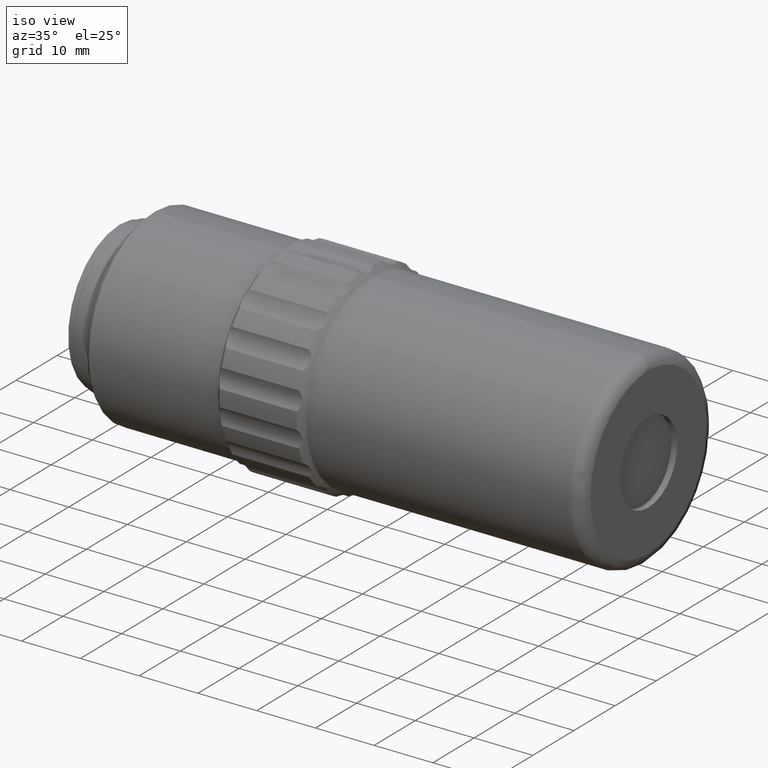
[diagram: clean part render]
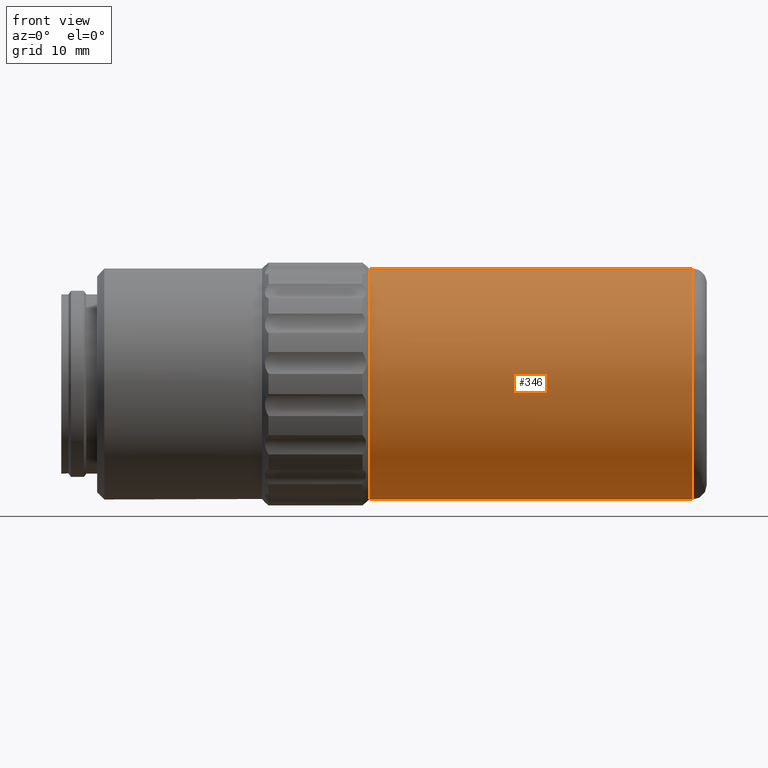
[diagram: tour spotlight — one face highlighted and labeled with its STEP entity id]
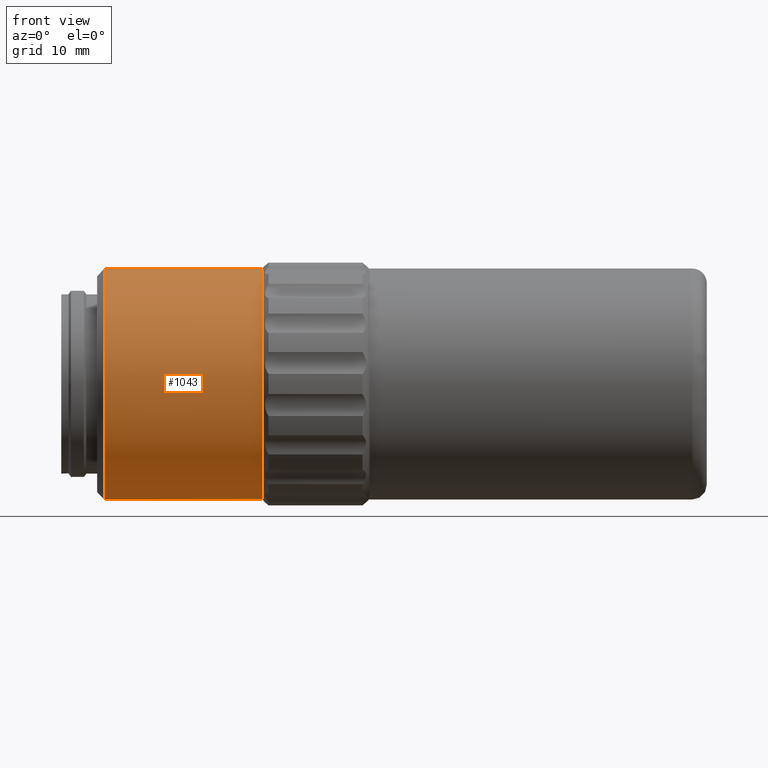
[diagram: tour spotlight — one face highlighted and labeled with its STEP entity id]
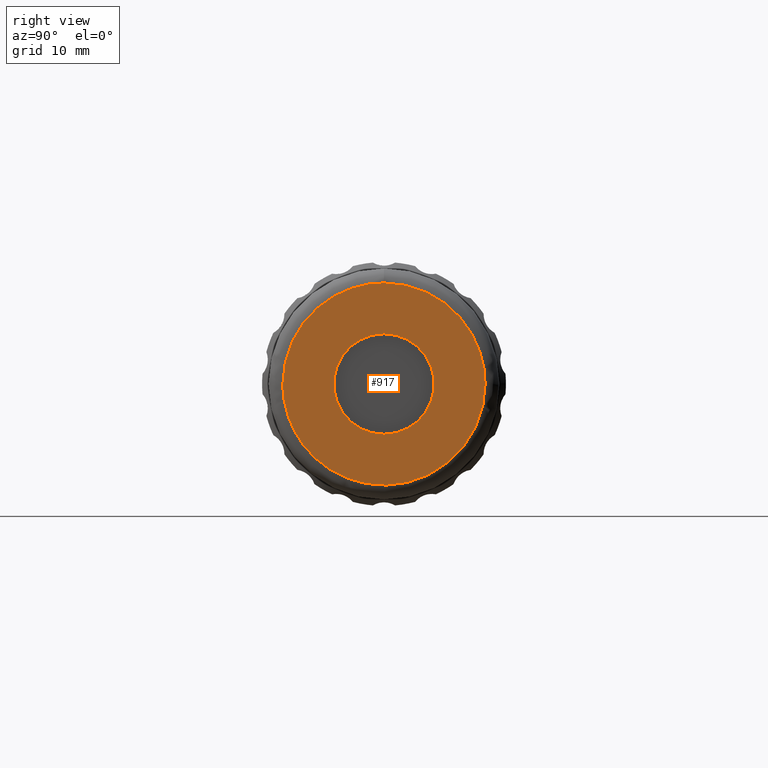
[diagram: tour spotlight — one face highlighted and labeled with its STEP entity id]
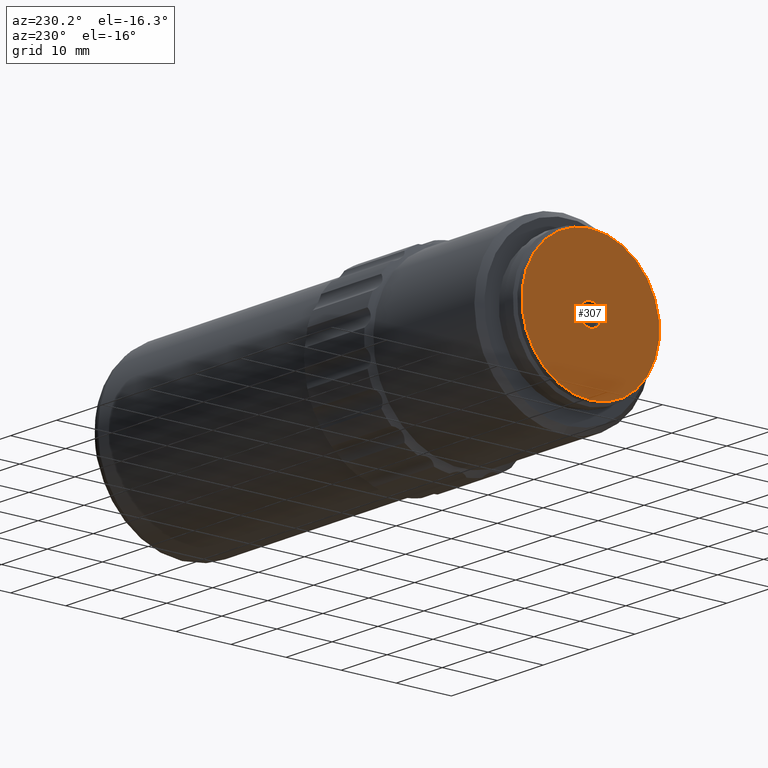
[diagram: tour spotlight — one face highlighted and labeled with its STEP entity id]
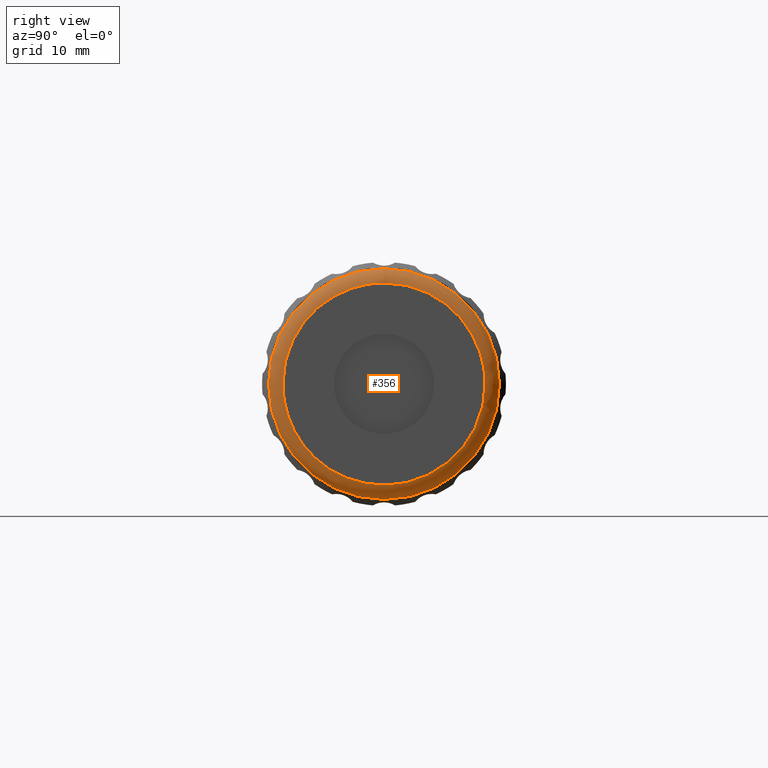
[diagram: tour spotlight — one face highlighted and labeled with its STEP entity id]
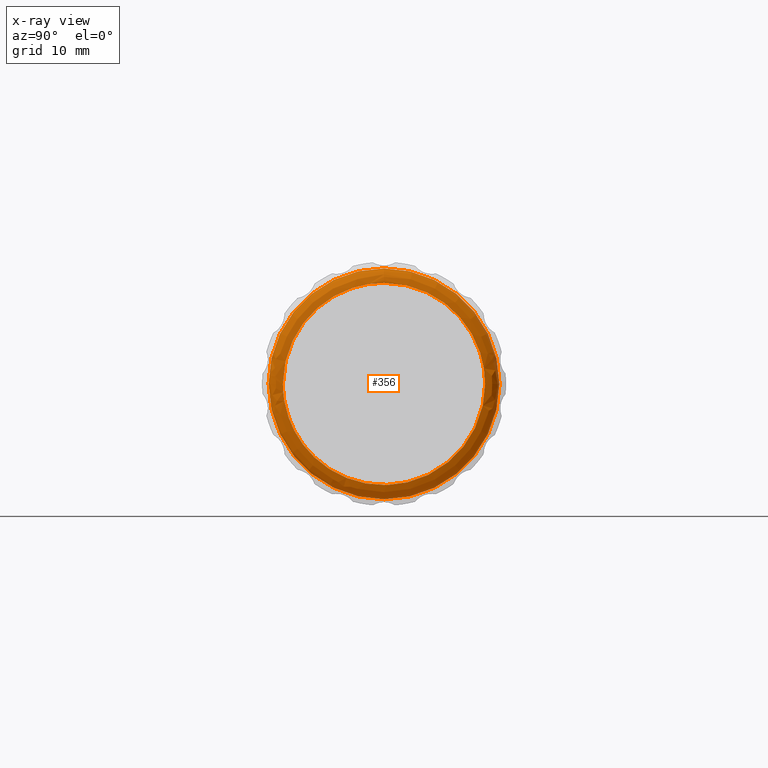
[diagram: x-ray of the same camera — body ghosted, this tour face saturated]
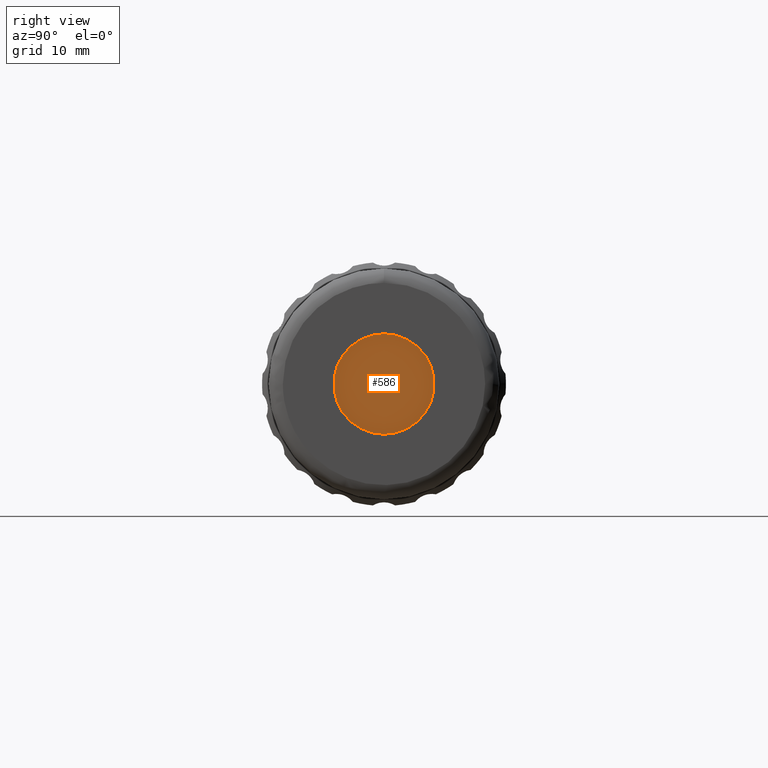
[diagram: tour spotlight — one face highlighted and labeled with its STEP entity id]
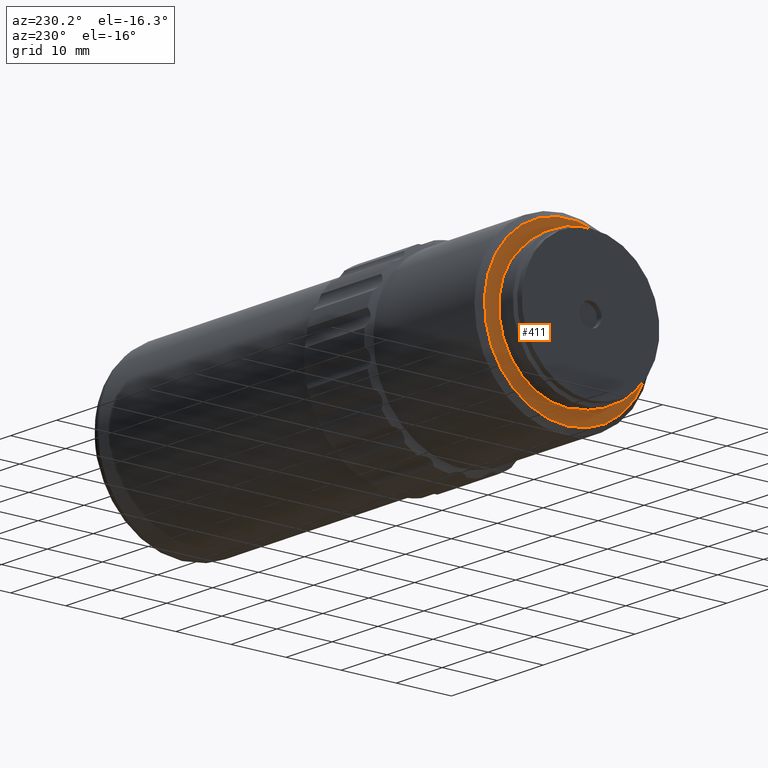
[diagram: tour spotlight — one face highlighted and labeled with its STEP entity id]
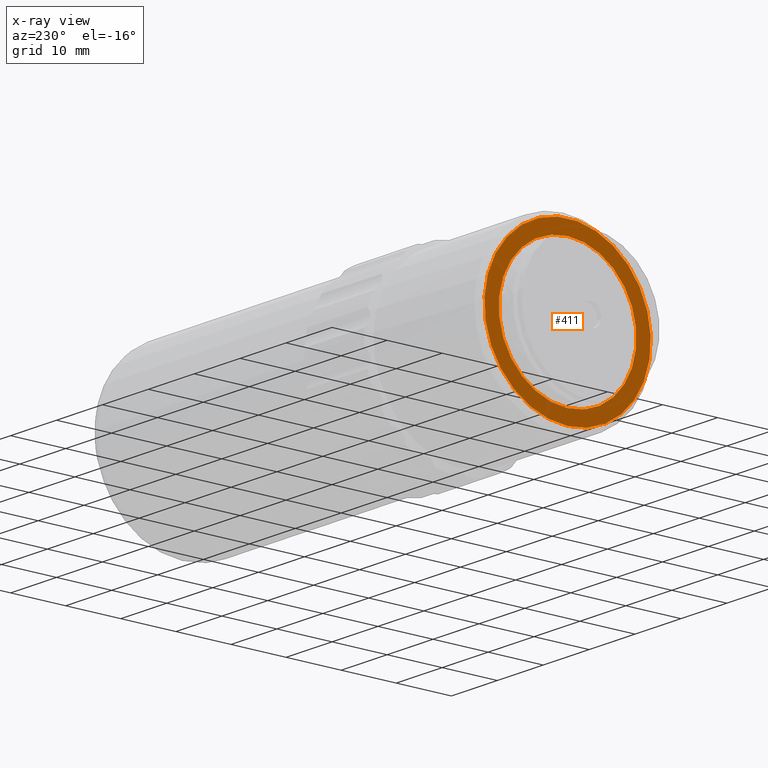
[diagram: x-ray of the same camera — body ghosted, this tour face saturated]
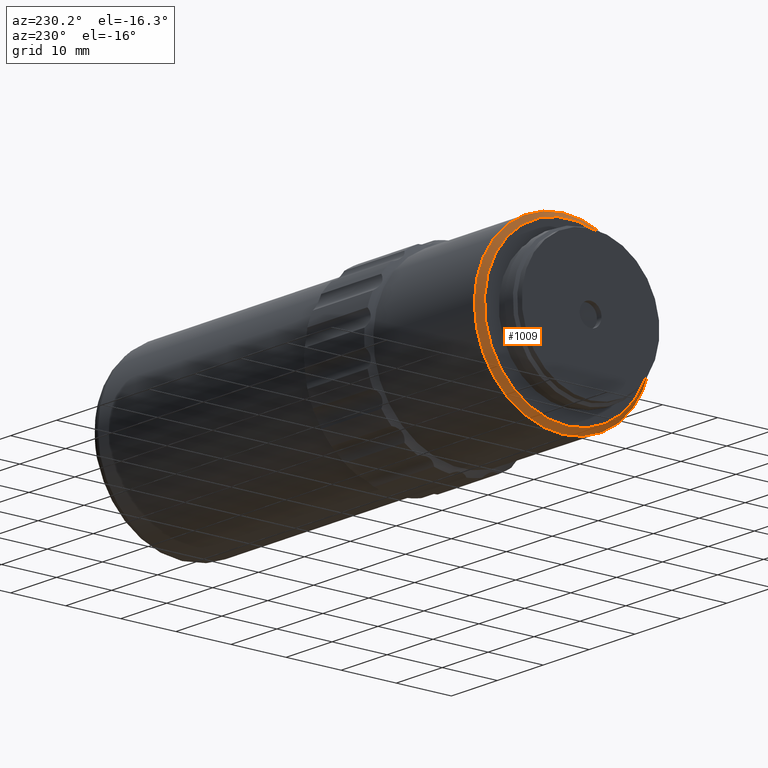
[diagram: tour spotlight — one face highlighted and labeled with its STEP entity id]
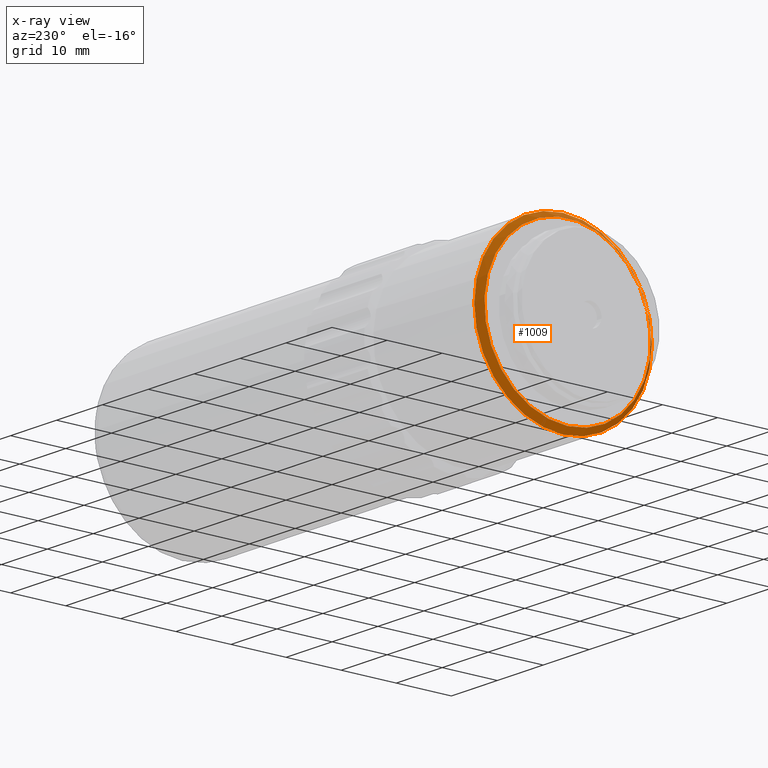
[diagram: x-ray of the same camera — body ghosted, this tour face saturated]
A machine part: a face-by-face anatomy tour. The part has 55 B-rep faces; the first image is the clean iso view, then the 8 largest visible faces are spotlighted one at a time (largest first), each with its STEP entity span.

Face 1 — front view, entity #346. In plain terms, the highlighted cylindrical surface (bore or boss wall) has radius 16.1 mm, axis along (-1, 0, 0).
Definition (entity closure, byte-faithful):
#53 = DIRECTION ( 'NONE',  ( 0.000000000000000000, 0.000000000000000000, 1.000000000000000000 ) ) ;
#75 = CIRCLE ( 'NONE', #1227, 16.10000000000000142 ) ;
#227 = CARTESIAN_POINT ( 'NONE',  ( 33.44685803487879383, 46.02096199999999726, 0.000000000000000000 ) ) ;
#346 = ADVANCED_FACE ( 'NONE', ( #1029, #1868 ), #1671, .T. ) ;
#350 = VERTEX_POINT ( 'NONE', #1329 ) ;
#371 = DIRECTION ( 'NONE',  ( -1.000000000000000000, 0.000000000000000000, 0.000000000000000000 ) ) ;
#490 = ORIENTED_EDGE ( 'NONE', *, *, #1411, .T. ) ;
#552 = EDGE_LOOP ( 'NONE', ( #1380 ) ) ;
#622 = CIRCLE ( 'NONE', #789, 16.10000000000000142 ) ;
#789 = AXIS2_PLACEMENT_3D ( 'NONE', #227, #1015, #53 ) ;
#836 = EDGE_LOOP ( 'NONE', ( #490 ) ) ;
#846 = DIRECTION ( 'NONE',  ( 0.000000000000000000, 0.000000000000000000, 1.000000000000000000 ) ) ;
#1015 = DIRECTION ( 'NONE',  ( 1.000000000000000000, -0.000000000000000000, -0.000000000000000000 ) ) ;
#1029 = FACE_OUTER_BOUND ( 'NONE', #552, .T. ) ;
#1049 = DIRECTION ( 'NONE',  ( 0.000000000000000000, 0.000000000000000000, 1.000000000000000000 ) ) ;
#1227 = AXIS2_PLACEMENT_3D ( 'NONE', #1489, #1345, #846 ) ;
#1329 = CARTESIAN_POINT ( 'NONE',  ( 33.44685803487879383, 46.02096199999999726, 16.10000000000000142 ) ) ;
#1345 = DIRECTION ( 'NONE',  ( -1.000000000000000000, 0.000000000000000000, 0.000000000000000000 ) ) ;
#1372 = AXIS2_PLACEMENT_3D ( 'NONE', #1834, #371, #1049 ) ;
#1380 = ORIENTED_EDGE ( 'NONE', *, *, #1487, .T. ) ;
#1411 = EDGE_CURVE ( 'NONE', #1523, #1523, #75, .T. ) ;
#1487 = EDGE_CURVE ( 'NONE', #350, #350, #622, .T. ) ;
#1489 = CARTESIAN_POINT ( 'NONE',  ( 78.44685803487880094, 46.02096199999999726, 0.000000000000000000 ) ) ;
#1523 = VERTEX_POINT ( 'NONE', #1995 ) ;
#1671 = CYLINDRICAL_SURFACE ( 'NONE', #1372, 16.10000000000000142 ) ;
#1834 = CARTESIAN_POINT ( 'NONE',  ( 44.14685803487879667, 46.02096199999999726, 0.000000000000000000 ) ) ;
#1868 = FACE_OUTER_BOUND ( 'NONE', #836, .T. ) ;
#1995 = CARTESIAN_POINT ( 'NONE',  ( 78.44685803487880094, 46.02096199999999726, 16.10000000000000142 ) ) ;

Face 2 — front view, entity #1043. In plain terms, the highlighted cylindrical surface (bore or boss wall) has radius 16.1 mm, axis along (-1, 0, 0).
Definition (entity closure, byte-faithful):
#21 = CARTESIAN_POINT ( 'NONE',  ( -3.553141965121202617, 46.02096199999999726, 0.000000000000000000 ) ) ;
#30 = VERTEX_POINT ( 'NONE', #993 ) ;
#77 = DIRECTION ( 'NONE',  ( 1.000000000000000000, 0.000000000000000000, 0.000000000000000000 ) ) ;
#258 = EDGE_CURVE ( 'NONE', #1592, #1592, #1310, .T. ) ;
#338 = DIRECTION ( 'NONE',  ( 1.000000000000000000, -0.000000000000000000, -0.000000000000000000 ) ) ;
#348 = AXIS2_PLACEMENT_3D ( 'NONE', #21, #338, #1842 ) ;
#668 = CARTESIAN_POINT ( 'NONE',  ( 18.44685803487879738, 29.92096199999999584, 0.000000000000000000 ) ) ;
#731 = ORIENTED_EDGE ( 'NONE', *, *, #258, .F. ) ;
#806 = EDGE_LOOP ( 'NONE', ( #731 ) ) ;
#882 = CARTESIAN_POINT ( 'NONE',  ( 18.44685803487879738, 46.02096199999999726, 0.000000000000000000 ) ) ;
#993 = CARTESIAN_POINT ( 'NONE',  ( -3.553141965121202617, 46.02096199999999726, 16.10000000000000142 ) ) ;
#1010 = DIRECTION ( 'NONE',  ( 0.000000000000000000, 0.000000000000000000, 1.000000000000000000 ) ) ;
#1025 = EDGE_CURVE ( 'NONE', #30, #30, #1125, .T. ) ;
#1043 = ADVANCED_FACE ( 'NONE', ( #1639, #1484 ), #1661, .T. ) ;
#1112 = EDGE_LOOP ( 'NONE', ( #1382 ) ) ;
#1125 = CIRCLE ( 'NONE', #348, 16.10000000000000142 ) ;
#1310 = CIRCLE ( 'NONE', #1751, 16.10000000000000142 ) ;
#1382 = ORIENTED_EDGE ( 'NONE', *, *, #1025, .T. ) ;
#1474 = CARTESIAN_POINT ( 'NONE',  ( 6.946858034878798271, 46.02096199999999726, 0.000000000000000000 ) ) ;
#1484 = FACE_OUTER_BOUND ( 'NONE', #806, .T. ) ;
#1516 = DIRECTION ( 'NONE',  ( 0.000000000000000000, -1.000000000000000000, 0.000000000000000000 ) ) ;
#1592 = VERTEX_POINT ( 'NONE', #668 ) ;
#1639 = FACE_OUTER_BOUND ( 'NONE', #1112, .T. ) ;
#1642 = AXIS2_PLACEMENT_3D ( 'NONE', #1474, #1801, #1010 ) ;
#1661 = CYLINDRICAL_SURFACE ( 'NONE', #1642, 16.10000000000000142 ) ;
#1751 = AXIS2_PLACEMENT_3D ( 'NONE', #882, #77, #1516 ) ;
#1801 = DIRECTION ( 'NONE',  ( -1.000000000000000000, 0.000000000000000000, 0.000000000000000000 ) ) ;
#1842 = DIRECTION ( 'NONE',  ( 0.000000000000000000, 0.000000000000000000, 1.000000000000000000 ) ) ;

Face 3 — right view, entity #917. In plain terms, the highlighted planar face has unit normal (1, 0, 0).
Definition (entity closure, byte-faithful):
#26 = CARTESIAN_POINT ( 'NONE',  ( 80.44685803487880094, 46.02096199999999726, 14.10000000000000142 ) ) ;
#57 = VERTEX_POINT ( 'NONE', #1028 ) ;
#191 = EDGE_LOOP ( 'NONE', ( #618, #707, #1303 ) ) ;
#214 = CARTESIAN_POINT ( 'NONE',  ( 80.44685803487880094, 37.76137322946063790, 14.09999999999999964 ) ) ;
#266 = CARTESIAN_POINT ( 'NONE',  ( 80.44685803487880094, 60.12096199999999868, 8.259588770539359359 ) ) ;
#386 = CARTESIAN_POINT ( 'NONE',  ( 80.44685803487880094, 31.92096199999999584, -1.036051192078660836E-15 ) ) ;
#391 = CARTESIAN_POINT ( 'NONE',  ( 80.44685803487880094, 31.92096199999999584, -28.19999999999999929 ) ) ;
#452 = FACE_BOUND ( 'NONE', #652, .T. ) ;
#457 = CARTESIAN_POINT ( 'NONE',  ( 80.44685803487880094, 60.12096199999999868, 0.000000000000000000 ) ) ;
#618 = ORIENTED_EDGE ( 'NONE', *, *, #1205, .F. ) ;
#652 = EDGE_LOOP ( 'NONE', ( #1510 ) ) ;
#707 = ORIENTED_EDGE ( 'NONE', *, *, #1719, .F. ) ;
#917 = ADVANCED_FACE ( 'NONE', ( #1915, #452 ), #1434, .T. ) ;
#1027 = CARTESIAN_POINT ( 'NONE',  ( 80.44685803487880094, 60.12096200000000579, -28.19999999999999929 ) ) ;
#1028 = CARTESIAN_POINT ( 'NONE',  ( 80.44685803487880094, 46.02096199999999726, -7.000000000000000000 ) ) ;
#1036 = CARTESIAN_POINT ( 'NONE',  ( 80.44685803487880094, 31.92096199999999584, -1.036051192078660836E-15 ) ) ;
#1139 = DIRECTION ( 'NONE',  ( 0.000000000000000000, 0.000000000000000000, -1.000000000000000000 ) ) ;
#1168 = DIRECTION ( 'NONE',  ( -1.000000000000000000, -0.000000000000000000, -0.000000000000000000 ) ) ;
#1189 = CARTESIAN_POINT ( 'NONE',  ( 80.44685803487880094, 60.12096199999999868, 0.000000000000000000 ) ) ;
#1205 = EDGE_CURVE ( 'NONE', #1632, #1856, #2105, .T. ) ;
#1218 =( BOUNDED_CURVE ( )  B_SPLINE_CURVE ( 3, ( #386, #1674, #214, #1844 ),
 .UNSPECIFIED., .F., .T. ) 
 B_SPLINE_CURVE_WITH_KNOTS ( ( 4, 4 ),
 ( 0.000000000000000000, 1.000000000000000000 ),
 .UNSPECIFIED. ) 
 CURVE ( )  GEOMETRIC_REPRESENTATION_ITEM ( )  RATIONAL_B_SPLINE_CURVE ( ( 1.000000000000000000, 0.8047378541243649375, 0.8047378541243649375, 1.000000000000000000 ) ) 
 REPRESENTATION_ITEM ( '' )  );
#1303 = ORIENTED_EDGE ( 'NONE', *, *, #1857, .F. ) ;
#1308 = AXIS2_PLACEMENT_3D ( 'NONE', #1657, #1168, #1139 ) ;
#1358 = CARTESIAN_POINT ( 'NONE',  ( 80.44685803487880094, 31.92096199999999584, -1.036051192078660836E-15 ) ) ;
#1359 = VERTEX_POINT ( 'NONE', #26 ) ;
#1392 = EDGE_CURVE ( 'NONE', #57, #57, #1990, .T. ) ;
#1434 = PLANE ( 'NONE',  #1876 ) ;
#1510 = ORIENTED_EDGE ( 'NONE', *, *, #1392, .T. ) ;
#1566 = CARTESIAN_POINT ( 'NONE',  ( 80.44685803487880094, 60.12096199999999868, 0.000000000000000000 ) ) ;
#1618 = DIRECTION ( 'NONE',  ( 0.000000000000000000, 0.000000000000000000, -1.000000000000000000 ) ) ;
#1632 = VERTEX_POINT ( 'NONE', #457 ) ;
#1657 = CARTESIAN_POINT ( 'NONE',  ( 80.44685803487880094, 46.02096199999999726, 4.350675744370770171E-31 ) ) ;
#1674 = CARTESIAN_POINT ( 'NONE',  ( 80.44685803487880094, 31.92096199999999584, 8.259588770539357583 ) ) ;
#1719 = EDGE_CURVE ( 'NONE', #1359, #1632, #1832, .T. ) ;
#1792 = CARTESIAN_POINT ( 'NONE',  ( 80.44685803487880094, 46.02096199999999726, 14.44999999999999929 ) ) ;
#1832 =( BOUNDED_CURVE ( )  B_SPLINE_CURVE ( 3, ( #1879, #2018, #266, #1566 ),
 .UNSPECIFIED., .F., .T. ) 
 B_SPLINE_CURVE_WITH_KNOTS ( ( 4, 4 ),
 ( 0.000000000000000000, 1.000000000000000000 ),
 .UNSPECIFIED. ) 
 CURVE ( )  GEOMETRIC_REPRESENTATION_ITEM ( )  RATIONAL_B_SPLINE_CURVE ( ( 1.000000000000000000, 0.8047378541243649375, 0.8047378541243649375, 1.000000000000000000 ) ) 
 REPRESENTATION_ITEM ( '' )  );
#1844 = CARTESIAN_POINT ( 'NONE',  ( 80.44685803487880094, 46.02096199999999726, 14.10000000000000142 ) ) ;
#1856 = VERTEX_POINT ( 'NONE', #1358 ) ;
#1857 = EDGE_CURVE ( 'NONE', #1856, #1359, #1218, .T. ) ;
#1876 = AXIS2_PLACEMENT_3D ( 'NONE', #1792, #1939, #1618 ) ;
#1879 = CARTESIAN_POINT ( 'NONE',  ( 80.44685803487880094, 46.02096199999999726, 14.10000000000000142 ) ) ;
#1915 = FACE_OUTER_BOUND ( 'NONE', #191, .T. ) ;
#1939 = DIRECTION ( 'NONE',  ( 1.000000000000000000, 0.000000000000000000, 0.000000000000000000 ) ) ;
#1990 = CIRCLE ( 'NONE', #1308, 7.000000000000000000 ) ;
#2018 = CARTESIAN_POINT ( 'NONE',  ( 80.44685803487880094, 54.28055077053935662, 14.09999999999999964 ) ) ;
#2105 =( BOUNDED_CURVE ( )  B_SPLINE_CURVE ( 3, ( #1189, #1027, #391, #1036 ),
 .UNSPECIFIED., .F., .T. ) 
 B_SPLINE_CURVE_WITH_KNOTS ( ( 4, 4 ),
 ( 0.000000000000000000, 1.000000000000000000 ),
 .UNSPECIFIED. ) 
 CURVE ( )  GEOMETRIC_REPRESENTATION_ITEM ( )  RATIONAL_B_SPLINE_CURVE ( ( 1.000000000000000000, 0.3333333333333333703, 0.3333333333333333703, 1.000000000000000000 ) ) 
 REPRESENTATION_ITEM ( '' )  );

Face 4 — auxiliary view, entity #307. In plain terms, the highlighted planar face has unit normal (-1, 0, 0).
Definition (entity closure, byte-faithful):
#230 = VERTEX_POINT ( 'NONE', #704 ) ;
#237 = FACE_OUTER_BOUND ( 'NONE', #1784, .T. ) ;
#307 = ADVANCED_FACE ( 'NONE', ( #237, #862 ), #1851, .T. ) ;
#362 = CARTESIAN_POINT ( 'NONE',  ( -9.553141965121202617, 46.02096199999999726, 12.50000000000000000 ) ) ;
#366 = ORIENTED_EDGE ( 'NONE', *, *, #810, .F. ) ;
#379 = AXIS2_PLACEMENT_3D ( 'NONE', #615, #1268, #1294 ) ;
#565 = CARTESIAN_POINT ( 'NONE',  ( -9.553141965121202617, 57.87096199999999868, 0.000000000000000000 ) ) ;
#615 = CARTESIAN_POINT ( 'NONE',  ( -9.553141965121202617, 46.02096199999999726, 0.000000000000000000 ) ) ;
#677 = VERTEX_POINT ( 'NONE', #362 ) ;
#682 = EDGE_LOOP ( 'NONE', ( #1761 ) ) ;
#704 = CARTESIAN_POINT ( 'NONE',  ( -9.553141965121202617, 46.02096199999999726, 2.000000000000000000 ) ) ;
#810 = EDGE_CURVE ( 'NONE', #677, #677, #1017, .T. ) ;
#862 = FACE_BOUND ( 'NONE', #682, .T. ) ;
#1017 = CIRCLE ( 'NONE', #379, 12.50000000000000000 ) ;
#1174 = DIRECTION ( 'NONE',  ( -1.000000000000000000, 0.000000000000000000, 0.000000000000000000 ) ) ;
#1211 = DIRECTION ( 'NONE',  ( 0.000000000000000000, 0.000000000000000000, 1.000000000000000000 ) ) ;
#1268 = DIRECTION ( 'NONE',  ( 1.000000000000000000, -0.000000000000000000, -0.000000000000000000 ) ) ;
#1294 = DIRECTION ( 'NONE',  ( 0.000000000000000000, 0.000000000000000000, 1.000000000000000000 ) ) ;
#1393 = DIRECTION ( 'NONE',  ( 1.000000000000000000, -0.000000000000000000, -0.000000000000000000 ) ) ;
#1476 = EDGE_CURVE ( 'NONE', #230, #230, #1572, .T. ) ;
#1572 = CIRCLE ( 'NONE', #2051, 2.000000000000000000 ) ;
#1761 = ORIENTED_EDGE ( 'NONE', *, *, #1476, .T. ) ;
#1784 = EDGE_LOOP ( 'NONE', ( #366 ) ) ;
#1846 = CARTESIAN_POINT ( 'NONE',  ( -9.553141965121202617, 46.02096199999999726, 0.000000000000000000 ) ) ;
#1851 = PLANE ( 'NONE',  #1853 ) ;
#1853 = AXIS2_PLACEMENT_3D ( 'NONE', #565, #1174, #1211 ) ;
#1872 = DIRECTION ( 'NONE',  ( 0.000000000000000000, 0.000000000000000000, 1.000000000000000000 ) ) ;
#2051 = AXIS2_PLACEMENT_3D ( 'NONE', #1846, #1393, #1872 ) ;

Face 5 — right view, entity #356. An x-ray twin of the same camera follows (body ghosted, this face saturated) — the face is partly hidden behind the body. In plain terms, the highlighted face is a freeform B-spline surface patch.
Definition (entity closure, byte-faithful):
#26 = CARTESIAN_POINT ( 'NONE',  ( 80.44685803487880094, 46.02096199999999726, 14.10000000000000142 ) ) ;
#49 = CARTESIAN_POINT ( 'NONE',  ( 78.44685803487880094, 62.12096199999999868, 0.000000000000000000 ) ) ;
#70 = ORIENTED_EDGE ( 'NONE', *, *, #1205, .T. ) ;
#75 = CIRCLE ( 'NONE', #1227, 16.10000000000000142 ) ;
#100 = CARTESIAN_POINT ( 'NONE',  ( 79.61843091013261642, 29.92096199999999584, -32.20000000000000284 ) ) ;
#211 = CARTESIAN_POINT ( 'NONE',  ( 78.44685803487880094, 62.12096200000000579, -32.20000000000000284 ) ) ;
#214 = CARTESIAN_POINT ( 'NONE',  ( 80.44685803487880094, 37.76137322946063790, 14.09999999999999964 ) ) ;
#257 = CARTESIAN_POINT ( 'NONE',  ( 80.44685803487880094, 31.92096199999999229, -28.20000000000000284 ) ) ;
#266 = CARTESIAN_POINT ( 'NONE',  ( 80.44685803487880094, 60.12096199999999868, 8.259588770539359359 ) ) ;
#356 = ADVANCED_FACE ( 'NONE', ( #1692, #1012 ), #730, .T. ) ;
#386 = CARTESIAN_POINT ( 'NONE',  ( 80.44685803487880094, 31.92096199999999584, -1.036051192078660836E-15 ) ) ;
#391 = CARTESIAN_POINT ( 'NONE',  ( 80.44685803487880094, 31.92096199999999584, -28.19999999999999929 ) ) ;
#415 = CARTESIAN_POINT ( 'NONE',  ( 80.44685803487880094, 30.74938912474618391, 30.54314575050763025 ) ) ;
#441 = CARTESIAN_POINT ( 'NONE',  ( 80.44685803487880094, 60.12096199999999868, 0.000000000000000000 ) ) ;
#457 = CARTESIAN_POINT ( 'NONE',  ( 80.44685803487880094, 60.12096199999999868, 0.000000000000000000 ) ) ;
#567 = ORIENTED_EDGE ( 'NONE', *, *, #1719, .T. ) ;
#584 = CARTESIAN_POINT ( 'NONE',  ( 80.44685803487880094, 61.29253487525381416, -30.54314575050762315 ) ) ;
#598 = CARTESIAN_POINT ( 'NONE',  ( 80.44685803487880094, 60.12096199999999868, -28.20000000000000284 ) ) ;
#709 = ORIENTED_EDGE ( 'NONE', *, *, #1857, .T. ) ;
#730 =( BOUNDED_SURFACE ( )  B_SPLINE_SURFACE ( 3, 3, ( 
 ( #870, #211, #1712, #893, #854, #1507, #49 ),
 ( #1350, #2003, #100, #1893, #775, #744, #2039 ),
 ( #1222, #584, #2086, #2062, #415, #733, #2072 ),
 ( #1555, #598, #257, #1904, #1432, #1389, #441 ) ),
 .UNSPECIFIED., .F., .T., .T. ) 
 B_SPLINE_SURFACE_WITH_KNOTS ( ( 4, 4 ),
 ( 4, 3, 4 ),
 ( 0.000000000000000000, 1.000000000000000000 ),
 ( 0.000000000000000000, 0.5000000000000000000, 1.000000000000000000 ),
 .UNSPECIFIED. ) 
 GEOMETRIC_REPRESENTATION_ITEM ( )  RATIONAL_B_SPLINE_SURFACE ( (
 ( 1.000000000000000000, 0.3333333333333333148, 0.3333333333333333148, 1.000000000000000000, 0.3333333333333333148, 0.3333333333333333148, 1.000000000000000000),
 ( 0.8047378541243649375, 0.2682459513747882940, 0.2682459513747882940, 0.8047378541243649375, 0.2682459513747882940, 0.2682459513747882940, 0.8047378541243649375),
 ( 0.8047378541243649375, 0.2682459513747882940, 0.2682459513747882940, 0.8047378541243649375, 0.2682459513747882940, 0.2682459513747882940, 0.8047378541243649375),
 ( 1.000000000000000000, 0.3333333333333333148, 0.3333333333333333148, 1.000000000000000000, 0.3333333333333333148, 0.3333333333333333148, 1.000000000000000000) ) ) 
 REPRESENTATION_ITEM ( '' )  SURFACE ( )  );
#733 = CARTESIAN_POINT ( 'NONE',  ( 80.44685803487880094, 61.29253487525381416, 30.54314575050762315 ) ) ;
#744 = CARTESIAN_POINT ( 'NONE',  ( 79.61843091013261642, 62.12096199999999868, 32.20000000000000284 ) ) ;
#775 = CARTESIAN_POINT ( 'NONE',  ( 79.61843091013261642, 29.92096199999999584, 32.20000000000000284 ) ) ;
#797 = EDGE_LOOP ( 'NONE', ( #567, #70, #709 ) ) ;
#846 = DIRECTION ( 'NONE',  ( 0.000000000000000000, 0.000000000000000000, 1.000000000000000000 ) ) ;
#854 = CARTESIAN_POINT ( 'NONE',  ( 78.44685803487880094, 29.92096199999999584, 32.20000000000000284 ) ) ;
#870 = CARTESIAN_POINT ( 'NONE',  ( 78.44685803487880094, 62.12096199999999868, 0.000000000000000000 ) ) ;
#893 = CARTESIAN_POINT ( 'NONE',  ( 78.44685803487880094, 29.92096199999999584, 0.000000000000000000 ) ) ;
#1012 = FACE_OUTER_BOUND ( 'NONE', #1679, .T. ) ;
#1027 = CARTESIAN_POINT ( 'NONE',  ( 80.44685803487880094, 60.12096200000000579, -28.19999999999999929 ) ) ;
#1036 = CARTESIAN_POINT ( 'NONE',  ( 80.44685803487880094, 31.92096199999999584, -1.036051192078660836E-15 ) ) ;
#1189 = CARTESIAN_POINT ( 'NONE',  ( 80.44685803487880094, 60.12096199999999868, 0.000000000000000000 ) ) ;
#1205 = EDGE_CURVE ( 'NONE', #1632, #1856, #2105, .T. ) ;
#1218 =( BOUNDED_CURVE ( )  B_SPLINE_CURVE ( 3, ( #386, #1674, #214, #1844 ),
 .UNSPECIFIED., .F., .T. ) 
 B_SPLINE_CURVE_WITH_KNOTS ( ( 4, 4 ),
 ( 0.000000000000000000, 1.000000000000000000 ),
 .UNSPECIFIED. ) 
 CURVE ( )  GEOMETRIC_REPRESENTATION_ITEM ( )  RATIONAL_B_SPLINE_CURVE ( ( 1.000000000000000000, 0.8047378541243649375, 0.8047378541243649375, 1.000000000000000000 ) ) 
 REPRESENTATION_ITEM ( '' )  );
#1222 = CARTESIAN_POINT ( 'NONE',  ( 80.44685803487880094, 61.29253487525379995, 0.000000000000000000 ) ) ;
#1227 = AXIS2_PLACEMENT_3D ( 'NONE', #1489, #1345, #846 ) ;
#1345 = DIRECTION ( 'NONE',  ( -1.000000000000000000, 0.000000000000000000, 0.000000000000000000 ) ) ;
#1350 = CARTESIAN_POINT ( 'NONE',  ( 79.61843091013261642, 62.12096199999999868, 0.000000000000000000 ) ) ;
#1358 = CARTESIAN_POINT ( 'NONE',  ( 80.44685803487880094, 31.92096199999999584, -1.036051192078660836E-15 ) ) ;
#1359 = VERTEX_POINT ( 'NONE', #26 ) ;
#1389 = CARTESIAN_POINT ( 'NONE',  ( 80.44685803487880094, 60.12096199999999868, 28.20000000000000284 ) ) ;
#1411 = EDGE_CURVE ( 'NONE', #1523, #1523, #75, .T. ) ;
#1432 = CARTESIAN_POINT ( 'NONE',  ( 80.44685803487880094, 31.92096199999999229, 28.20000000000000284 ) ) ;
#1489 = CARTESIAN_POINT ( 'NONE',  ( 78.44685803487880094, 46.02096199999999726, 0.000000000000000000 ) ) ;
#1507 = CARTESIAN_POINT ( 'NONE',  ( 78.44685803487880094, 62.12096200000000579, 32.20000000000000284 ) ) ;
#1523 = VERTEX_POINT ( 'NONE', #1995 ) ;
#1555 = CARTESIAN_POINT ( 'NONE',  ( 80.44685803487880094, 60.12096199999999868, 0.000000000000000000 ) ) ;
#1566 = CARTESIAN_POINT ( 'NONE',  ( 80.44685803487880094, 60.12096199999999868, 0.000000000000000000 ) ) ;
#1632 = VERTEX_POINT ( 'NONE', #457 ) ;
#1674 = CARTESIAN_POINT ( 'NONE',  ( 80.44685803487880094, 31.92096199999999584, 8.259588770539357583 ) ) ;
#1679 = EDGE_LOOP ( 'NONE', ( #1689 ) ) ;
#1689 = ORIENTED_EDGE ( 'NONE', *, *, #1411, .F. ) ;
#1692 = FACE_OUTER_BOUND ( 'NONE', #797, .T. ) ;
#1712 = CARTESIAN_POINT ( 'NONE',  ( 78.44685803487880094, 29.92096199999999584, -32.20000000000000284 ) ) ;
#1719 = EDGE_CURVE ( 'NONE', #1359, #1632, #1832, .T. ) ;
#1832 =( BOUNDED_CURVE ( )  B_SPLINE_CURVE ( 3, ( #1879, #2018, #266, #1566 ),
 .UNSPECIFIED., .F., .T. ) 
 B_SPLINE_CURVE_WITH_KNOTS ( ( 4, 4 ),
 ( 0.000000000000000000, 1.000000000000000000 ),
 .UNSPECIFIED. ) 
 CURVE ( )  GEOMETRIC_REPRESENTATION_ITEM ( )  RATIONAL_B_SPLINE_CURVE ( ( 1.000000000000000000, 0.8047378541243649375, 0.8047378541243649375, 1.000000000000000000 ) ) 
 REPRESENTATION_ITEM ( '' )  );
#1844 = CARTESIAN_POINT ( 'NONE',  ( 80.44685803487880094, 46.02096199999999726, 14.10000000000000142 ) ) ;
#1856 = VERTEX_POINT ( 'NONE', #1358 ) ;
#1857 = EDGE_CURVE ( 'NONE', #1856, #1359, #1218, .T. ) ;
#1879 = CARTESIAN_POINT ( 'NONE',  ( 80.44685803487880094, 46.02096199999999726, 14.10000000000000142 ) ) ;
#1893 = CARTESIAN_POINT ( 'NONE',  ( 79.61843091013261642, 29.92096199999999939, 0.000000000000000000 ) ) ;
#1904 = CARTESIAN_POINT ( 'NONE',  ( 80.44685803487880094, 31.92096199999999584, 0.000000000000000000 ) ) ;
#1995 = CARTESIAN_POINT ( 'NONE',  ( 78.44685803487880094, 46.02096199999999726, 16.10000000000000142 ) ) ;
#2003 = CARTESIAN_POINT ( 'NONE',  ( 79.61843091013261642, 62.12096199999999868, -32.20000000000000284 ) ) ;
#2018 = CARTESIAN_POINT ( 'NONE',  ( 80.44685803487880094, 54.28055077053935662, 14.09999999999999964 ) ) ;
#2039 = CARTESIAN_POINT ( 'NONE',  ( 79.61843091013261642, 62.12096199999999868, 0.000000000000000000 ) ) ;
#2062 = CARTESIAN_POINT ( 'NONE',  ( 80.44685803487880094, 30.74938912474618391, 0.000000000000000000 ) ) ;
#2072 = CARTESIAN_POINT ( 'NONE',  ( 80.44685803487880094, 61.29253487525379995, 0.000000000000000000 ) ) ;
#2086 = CARTESIAN_POINT ( 'NONE',  ( 80.44685803487880094, 30.74938912474619102, -30.54314575050762315 ) ) ;
#2105 =( BOUNDED_CURVE ( )  B_SPLINE_CURVE ( 3, ( #1189, #1027, #391, #1036 ),
 .UNSPECIFIED., .F., .T. ) 
 B_SPLINE_CURVE_WITH_KNOTS ( ( 4, 4 ),
 ( 0.000000000000000000, 1.000000000000000000 ),
 .UNSPECIFIED. ) 
 CURVE ( )  GEOMETRIC_REPRESENTATION_ITEM ( )  RATIONAL_B_SPLINE_CURVE ( ( 1.000000000000000000, 0.3333333333333333703, 0.3333333333333333703, 1.000000000000000000 ) ) 
 REPRESENTATION_ITEM ( '' )  );

Face 6 — right view, entity #586. In plain terms, the highlighted planar face has unit normal (1, 0, -0).
Definition (entity closure, byte-faithful):
#20 = DIRECTION ( 'NONE',  ( 1.000000000000000000, 0.000000000000000000, -0.000000000000000000 ) ) ;
#184 = PLANE ( 'NONE',  #513 ) ;
#341 = EDGE_LOOP ( 'NONE', ( #1538 ) ) ;
#468 = CARTESIAN_POINT ( 'NONE',  ( 79.44685803487880094, 46.02096199999999726, 4.350675744370770171E-31 ) ) ;
#513 = AXIS2_PLACEMENT_3D ( 'NONE', #823, #20, #1318 ) ;
#586 = ADVANCED_FACE ( 'NONE', ( #1638 ), #184, .T. ) ;
#823 = CARTESIAN_POINT ( 'NONE',  ( 79.44685803487880094, 46.02096199999999726, 0.000000000000000000 ) ) ;
#959 = CIRCLE ( 'NONE', #1096, 7.000000000000000000 ) ;
#1096 = AXIS2_PLACEMENT_3D ( 'NONE', #468, #1414, #1401 ) ;
#1318 = DIRECTION ( 'NONE',  ( -0.000000000000000000, 0.000000000000000000, -1.000000000000000000 ) ) ;
#1356 = CARTESIAN_POINT ( 'NONE',  ( 79.44685803487880094, 46.02096199999999726, -7.000000000000000000 ) ) ;
#1401 = DIRECTION ( 'NONE',  ( 0.000000000000000000, 0.000000000000000000, -1.000000000000000000 ) ) ;
#1414 = DIRECTION ( 'NONE',  ( 1.000000000000000000, 0.000000000000000000, 0.000000000000000000 ) ) ;
#1506 = VERTEX_POINT ( 'NONE', #1356 ) ;
#1538 = ORIENTED_EDGE ( 'NONE', *, *, #1631, .T. ) ;
#1631 = EDGE_CURVE ( 'NONE', #1506, #1506, #959, .T. ) ;
#1638 = FACE_OUTER_BOUND ( 'NONE', #341, .T. ) ;

Face 7 — auxiliary view, entity #411. An x-ray twin of the same camera follows (body ghosted, this face saturated) — the face is partly hidden behind the body. In plain terms, the highlighted planar face has unit normal (-1, 0, 0).
Definition (entity closure, byte-faithful):
#59 = ORIENTED_EDGE ( 'NONE', *, *, #1536, .F. ) ;
#139 = FACE_BOUND ( 'NONE', #332, .T. ) ;
#194 = CARTESIAN_POINT ( 'NONE',  ( -4.553141965121199064, 46.02096199999999726, -15.09999999999999964 ) ) ;
#280 = CIRCLE ( 'NONE', #1054, 15.09999999999999964 ) ;
#322 = CIRCLE ( 'NONE', #1509, 12.50000000000000000 ) ;
#332 = EDGE_LOOP ( 'NONE', ( #1467 ) ) ;
#336 = CARTESIAN_POINT ( 'NONE',  ( -4.553141965121201729, 46.02096199999999726, 0.000000000000000000 ) ) ;
#411 = ADVANCED_FACE ( 'NONE', ( #139, #1880 ), #1275, .T. ) ;
#429 = CARTESIAN_POINT ( 'NONE',  ( -4.553141965121201729, 60.32096200000000863, 0.000000000000000000 ) ) ;
#506 = CARTESIAN_POINT ( 'NONE',  ( -4.553141965121201729, 46.02096199999999726, 12.50000000000000000 ) ) ;
#527 = EDGE_CURVE ( 'NONE', #1320, #1320, #322, .T. ) ;
#644 = DIRECTION ( 'NONE',  ( 0.000000000000000000, 0.000000000000000000, 1.000000000000000000 ) ) ;
#699 = EDGE_LOOP ( 'NONE', ( #59 ) ) ;
#700 = DIRECTION ( 'NONE',  ( -5.744117470121878474E-17, 0.000000000000000000, -1.000000000000000000 ) ) ;
#859 = AXIS2_PLACEMENT_3D ( 'NONE', #429, #1062, #1731 ) ;
#861 = VERTEX_POINT ( 'NONE', #194 ) ;
#1054 = AXIS2_PLACEMENT_3D ( 'NONE', #1199, #1716, #700 ) ;
#1062 = DIRECTION ( 'NONE',  ( -1.000000000000000000, 0.000000000000000000, 0.000000000000000000 ) ) ;
#1199 = CARTESIAN_POINT ( 'NONE',  ( -4.553141965121198176, 46.02096199999999726, 5.387339987505588212E-17 ) ) ;
#1275 = PLANE ( 'NONE',  #859 ) ;
#1320 = VERTEX_POINT ( 'NONE', #506 ) ;
#1327 = DIRECTION ( 'NONE',  ( 1.000000000000000000, -0.000000000000000000, -0.000000000000000000 ) ) ;
#1467 = ORIENTED_EDGE ( 'NONE', *, *, #527, .T. ) ;
#1509 = AXIS2_PLACEMENT_3D ( 'NONE', #336, #1327, #644 ) ;
#1536 = EDGE_CURVE ( 'NONE', #861, #861, #280, .T. ) ;
#1716 = DIRECTION ( 'NONE',  ( 1.000000000000000000, 0.000000000000000000, -5.387339987505611015E-17 ) ) ;
#1731 = DIRECTION ( 'NONE',  ( 0.000000000000000000, 0.000000000000000000, 1.000000000000000000 ) ) ;
#1880 = FACE_OUTER_BOUND ( 'NONE', #699, .T. ) ;

Face 8 — auxiliary view, entity #1009. An x-ray twin of the same camera follows (body ghosted, this face saturated) — the face is partly hidden behind the body. In plain terms, the highlighted conical surface has half-angle 45 deg.
Definition (entity closure, byte-faithful):
#21 = CARTESIAN_POINT ( 'NONE',  ( -3.553141965121202617, 46.02096199999999726, 0.000000000000000000 ) ) ;
#30 = VERTEX_POINT ( 'NONE', #993 ) ;
#194 = CARTESIAN_POINT ( 'NONE',  ( -4.553141965121199064, 46.02096199999999726, -15.09999999999999964 ) ) ;
#280 = CIRCLE ( 'NONE', #1054, 15.09999999999999964 ) ;
#338 = DIRECTION ( 'NONE',  ( 1.000000000000000000, -0.000000000000000000, -0.000000000000000000 ) ) ;
#348 = AXIS2_PLACEMENT_3D ( 'NONE', #21, #338, #1842 ) ;
#562 = EDGE_LOOP ( 'NONE', ( #1342 ) ) ;
#656 = FACE_OUTER_BOUND ( 'NONE', #562, .T. ) ;
#700 = DIRECTION ( 'NONE',  ( -5.744117470121878474E-17, 0.000000000000000000, -1.000000000000000000 ) ) ;
#849 = AXIS2_PLACEMENT_3D ( 'NONE', #1669, #1181, #1653 ) ;
#861 = VERTEX_POINT ( 'NONE', #194 ) ;
#993 = CARTESIAN_POINT ( 'NONE',  ( -3.553141965121202617, 46.02096199999999726, 16.10000000000000142 ) ) ;
#1009 = ADVANCED_FACE ( 'NONE', ( #656, #1338 ), #1780, .T. ) ;
#1025 = EDGE_CURVE ( 'NONE', #30, #30, #1125, .T. ) ;
#1054 = AXIS2_PLACEMENT_3D ( 'NONE', #1199, #1716, #700 ) ;
#1125 = CIRCLE ( 'NONE', #348, 16.10000000000000142 ) ;
#1181 = DIRECTION ( 'NONE',  ( 1.000000000000000000, 0.000000000000000000, -5.387339987505611015E-17 ) ) ;
#1199 = CARTESIAN_POINT ( 'NONE',  ( -4.553141965121198176, 46.02096199999999726, 5.387339987505588212E-17 ) ) ;
#1317 = ORIENTED_EDGE ( 'NONE', *, *, #1536, .T. ) ;
#1338 = FACE_BOUND ( 'NONE', #1946, .T. ) ;
#1342 = ORIENTED_EDGE ( 'NONE', *, *, #1025, .F. ) ;
#1536 = EDGE_CURVE ( 'NONE', #861, #861, #280, .T. ) ;
#1653 = DIRECTION ( 'NONE',  ( -5.387339987505611631E-17, 0.000000000000000000, -1.000000000000000000 ) ) ;
#1669 = CARTESIAN_POINT ( 'NONE',  ( -3.553141965121202617, 46.02096199999999726, 0.000000000000000000 ) ) ;
#1716 = DIRECTION ( 'NONE',  ( 1.000000000000000000, 0.000000000000000000, -5.387339987505611015E-17 ) ) ;
#1780 = CONICAL_SURFACE ( 'NONE', #849, 16.10000000000000142, 0.7853981633974526089 ) ;
#1842 = DIRECTION ( 'NONE',  ( 0.000000000000000000, 0.000000000000000000, 1.000000000000000000 ) ) ;
#1946 = EDGE_LOOP ( 'NONE', ( #1317 ) ) ;